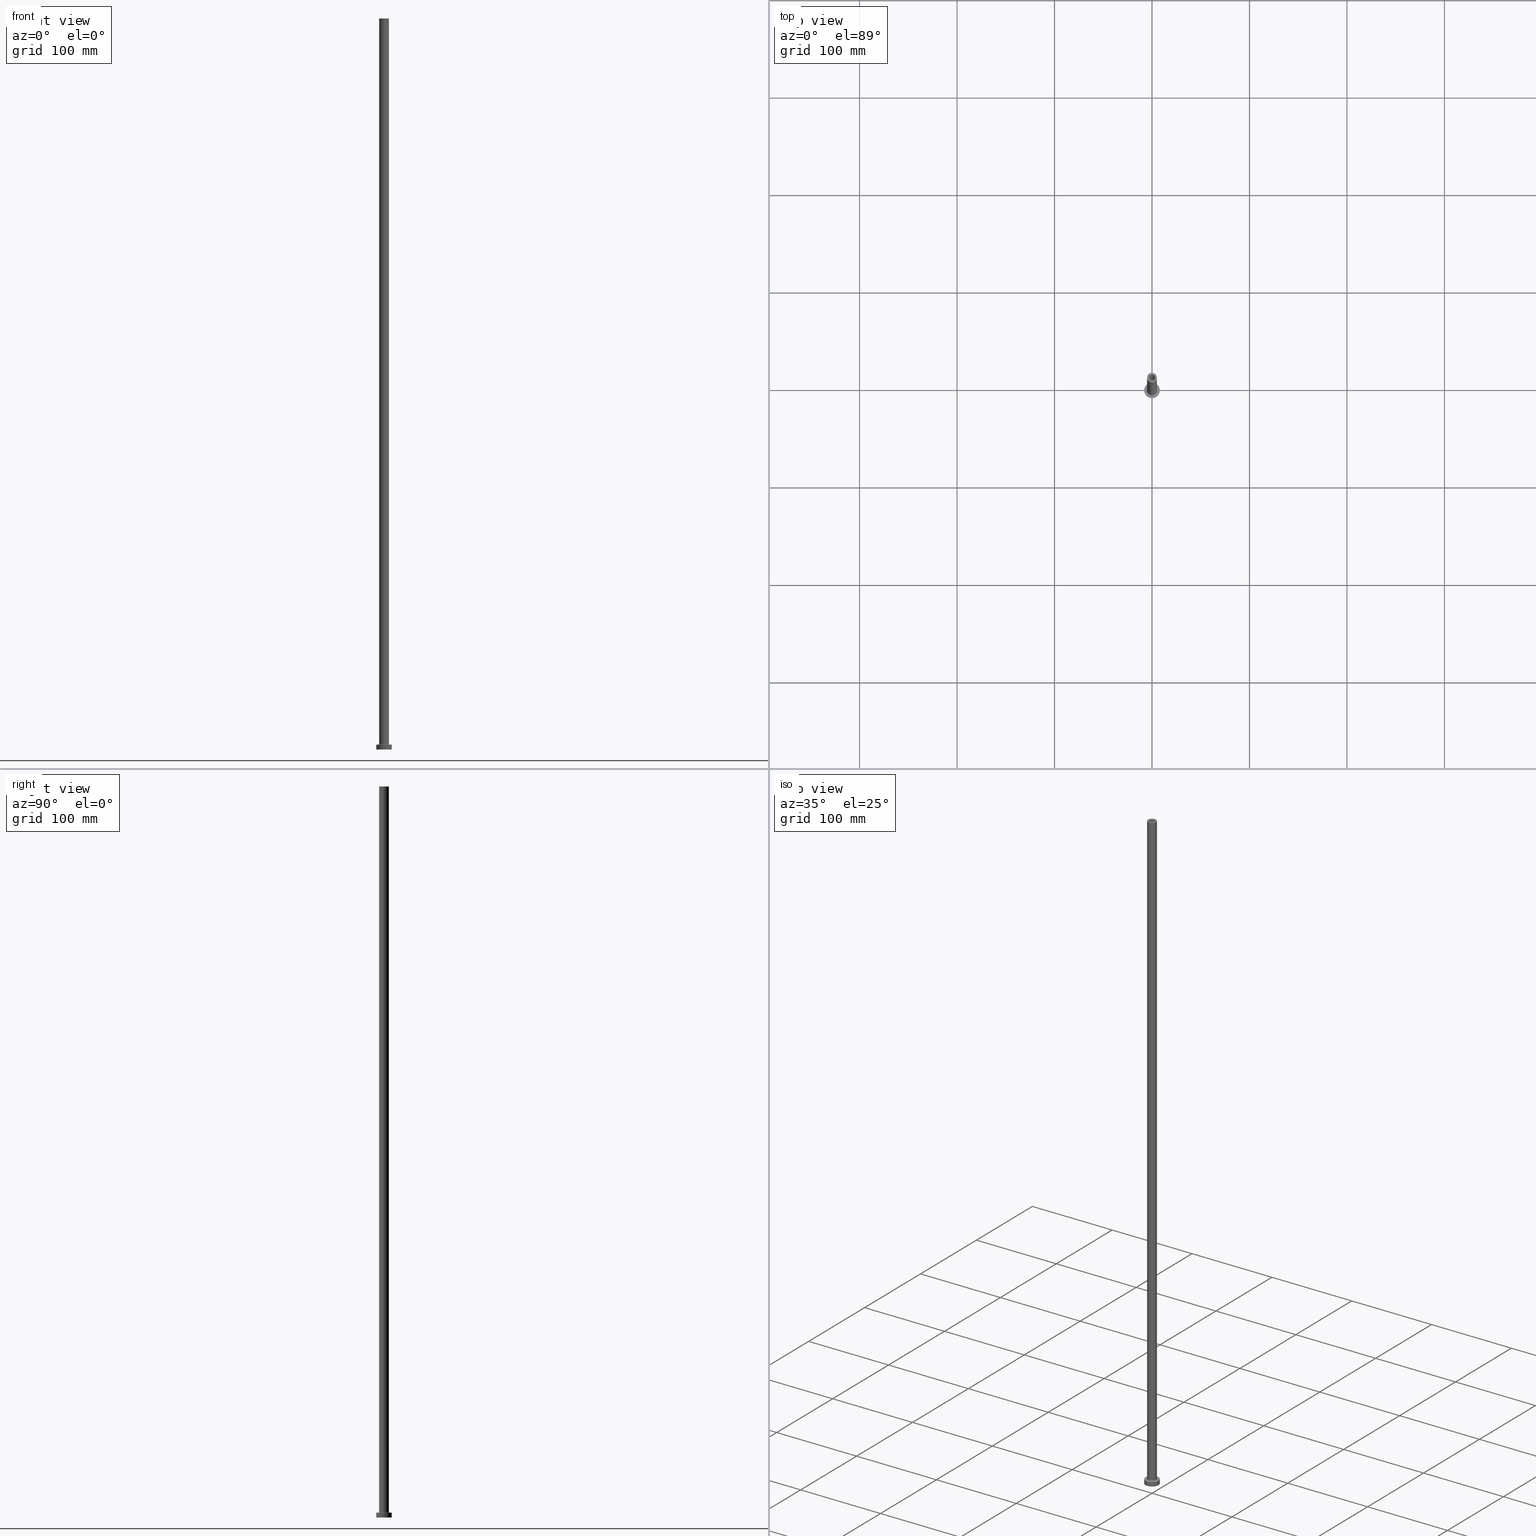
[diagram: canonical four-view strip — front | top / right | iso, engineering-drawing reading convention]
A machine part, canonical four-view strip (front | top / right | iso — engineering-drawing reading convention). The complete STEP part file that produces these views, byte-faithful:
ISO-10303-21;
HEADER;
FILE_DESCRIPTION (( 'STEP AP203' ),
    '1' );
FILE_NAME ('aff2.STEP',
    '2023-02-13T14:29:01',
    ( '' ),
    ( '' ),
    'SwSTEP 2.0',
    'SolidWorks 2019',
    '' );
FILE_SCHEMA (( 'CONFIG_CONTROL_DESIGN' ));
ENDSEC;

DATA;
#1 = EDGE_LOOP ( 'NONE', ( #181, #350, #306, #114 ) ) ;
#2 = VERTEX_POINT ( 'NONE', #364 ) ;
#3 = VERTEX_POINT ( 'NONE', #327 ) ;
#4 = EDGE_CURVE ( 'NONE', #135, #252, #195, .T. ) ;
#5 = DIRECTION ( 'NONE',  ( 0.000000000000000000, 0.000000000000000000, 1.000000000000000000 ) ) ;
#6 = ORIENTED_EDGE ( 'NONE', *, *, #314, .F. ) ;
#7 = PERSON_AND_ORGANIZATION_ROLE ( 'design_supplier' ) ;
#8 = ORIENTED_EDGE ( 'NONE', *, *, #450, .F. ) ;
#9 = MANIFOLD_SOLID_BREP ( 'Odebrat vysunut�m4', #116 ) ;
#10 = DIRECTION ( 'NONE',  ( -0.000000000000000000, -0.000000000000000000, -1.000000000000000000 ) ) ;
#11 = EDGE_LOOP ( 'NONE', ( #399, #104, #349, #459 ) ) ;
#12 = LINE ( 'NONE', #149, #432 ) ;
#13 = EDGE_CURVE ( 'NONE', #37, #252, #260, .T. ) ;
#14 = DIRECTION ( 'NONE',  ( 0.000000000000000000, 0.000000000000000000, 1.000000000000000000 ) ) ;
#15 = AXIS2_PLACEMENT_3D ( 'NONE', #368, #119, #48 ) ;
#16 = PLANE ( 'NONE',  #337 ) ;
#17 = ADVANCED_FACE ( 'NONE', ( #45 ), #115, .T. ) ;
#18 = CARTESIAN_POINT ( 'NONE',  ( 0.000000000000000000, 0.000000000000000000, 705.0000000000000000 ) ) ;
#19 = DIRECTION ( 'NONE',  ( 0.000000000000000000, 0.000000000000000000, -1.000000000000000000 ) ) ;
#20 = DIRECTION ( 'NONE',  ( 1.000000000000000000, 0.000000000000000000, -0.000000000000000000 ) ) ;
#21 = DIRECTION ( 'NONE',  ( 1.000000000000000000, 0.000000000000000000, 0.000000000000000000 ) ) ;
#22 = AXIS2_PLACEMENT_3D ( 'NONE', #387, #134, #458 ) ;
#23 = AXIS2_PLACEMENT_3D ( 'NONE', #290, #436, #121 ) ;
#24 = DIRECTION ( 'NONE',  ( 1.000000000000000000, 0.000000000000000000, -0.000000000000000000 ) ) ;
#25 = SECURITY_CLASSIFICATION ( '', '', #106 ) ;
#26 = CARTESIAN_POINT ( 'NONE',  ( 0.000000000000000000, 0.000000000000000000, 714.1923881554251921 ) ) ;
#27 = EDGE_LOOP ( 'NONE', ( #435, #281, #99, #140 ) ) ;
#28 = CC_DESIGN_PERSON_AND_ORGANIZATION_ASSIGNMENT ( #390, #385, ( #267 ) ) ;
#29 = AXIS2_PLACEMENT_3D ( 'NONE', #87, #54, #325 ) ;
#30 = APPLICATION_PROTOCOL_DEFINITION ( 'international standard', 'config_control_design', 1994, #365 ) ;
#31 = ORIENTED_EDGE ( 'NONE', *, *, #439, .F. ) ;
#32 = EDGE_CURVE ( 'NONE', #429, #72, #228, .T. ) ;
#33 = MECHANICAL_CONTEXT ( 'NONE', #341, 'mechanical' ) ;
#34 = CARTESIAN_POINT ( 'NONE',  ( 8.000000000000000000, 9.797174393178825657E-16, 5.000000000000000000 ) ) ;
#35 = DIRECTION ( 'NONE',  ( 0.000000000000000000, 0.000000000000000000, 1.000000000000000000 ) ) ;
#36 = DATE_AND_TIME ( #353, #301 ) ;
#37 = VERTEX_POINT ( 'NONE', #220 ) ;
#38 = APPROVAL_STATUS ( 'not_yet_approved' ) ;
#39 = EDGE_CURVE ( 'NONE', #44, #135, #42, .T. ) ;
#40 = ORIENTED_EDGE ( 'NONE', *, *, #79, .F. ) ;
#41 = CALENDAR_DATE ( 2023, 13, 2 ) ;
#42 = LINE ( 'NONE', #183, #361 ) ;
#43 = CARTESIAN_POINT ( 'NONE',  ( -5.000000000000000000, 0.000000000000000000, 5.499999999999949374 ) ) ;
#44 = VERTEX_POINT ( 'NONE', #186 ) ;
#45 = FACE_OUTER_BOUND ( 'NONE', #357, .T. ) ;
#46 = EDGE_CURVE ( 'NONE', #283, #58, #12, .T. ) ;
#47 = LOCAL_TIME ( 15, 29, 1.000000000000000000, #175 ) ;
#48 = DIRECTION ( 'NONE',  ( 1.000000000000000000, 0.000000000000000000, 0.000000000000000000 ) ) ;
#49 = DIRECTION ( 'NONE',  ( 0.000000000000000000, 0.000000000000000000, 1.000000000000000000 ) ) ;
#50 = EDGE_CURVE ( 'NONE', #429, #148, #286, .T. ) ;
#51 = DIRECTION ( 'NONE',  ( 0.000000000000000000, 0.000000000000000000, 1.000000000000000000 ) ) ;
#52 = CARTESIAN_POINT ( 'NONE',  ( 3.250000000000000444, 3.980102097228898231E-16, 714.1923881554251921 ) ) ;
#53 = CARTESIAN_POINT ( 'NONE',  ( 0.000000000000000000, 0.000000000000000000, 705.0000000000000000 ) ) ;
#54 = DIRECTION ( 'NONE',  ( 0.000000000000000000, 0.000000000000000000, 1.000000000000000000 ) ) ;
#55 = FACE_OUTER_BOUND ( 'NONE', #209, .T. ) ;
#56 = DIRECTION ( 'NONE',  ( 0.000000000000000000, 0.000000000000000000, 1.000000000000000000 ) ) ;
#57 = AXIS2_PLACEMENT_3D ( 'NONE', #378, #56, #340 ) ;
#58 = VERTEX_POINT ( 'NONE', #193 ) ;
#59 = DIRECTION ( 'NONE',  ( 0.000000000000000000, 0.000000000000000000, -1.000000000000000000 ) ) ;
#60 = CC_DESIGN_APPROVAL ( #382, ( #366 ) ) ;
#61 = PERSON_AND_ORGANIZATION ( #109, #232 ) ;
#62 = CC_DESIGN_PERSON_AND_ORGANIZATION_ASSIGNMENT ( #182, #7, ( #366 ) ) ;
#63 = PERSON_AND_ORGANIZATION ( #109, #232 ) ;
#64 = EDGE_CURVE ( 'NONE', #71, #319, #144, .T. ) ;
#65 = CIRCLE ( 'NONE', #345, 3.100000000000000089 ) ;
#66 = DIRECTION ( 'NONE',  ( 1.000000000000000000, 0.000000000000000000, 0.000000000000000000 ) ) ;
#67 = CARTESIAN_POINT ( 'NONE',  ( 5.000000000000000000, 6.123233995736766282E-16, 5.499999999999949374 ) ) ;
#68 = ORIENTED_EDGE ( 'NONE', *, *, #39, .F. ) ;
#69 = COORDINATED_UNIVERSAL_TIME_OFFSET ( 1, 0, .AHEAD. ) ;
#70 = ORIENTED_EDGE ( 'NONE', *, *, #126, .F. ) ;
#71 = VERTEX_POINT ( 'NONE', #404 ) ;
#72 = VERTEX_POINT ( 'NONE', #191 ) ;
#73 = ORIENTED_EDGE ( 'NONE', *, *, #284, .F. ) ;
#74 = AXIS2_PLACEMENT_3D ( 'NONE', #97, #275, #95 ) ;
#75 = CIRCLE ( 'NONE', #416, 3.100000000000000089 ) ;
#76 = DATE_AND_TIME ( #41, #243 ) ;
#77 = ORIENTED_EDGE ( 'NONE', *, *, #392, .F. ) ;
#78 = DIRECTION ( 'NONE',  ( -0.000000000000000000, -0.000000000000000000, -1.000000000000000000 ) ) ;
#79 = EDGE_CURVE ( 'NONE', #200, #165, #255, .T. ) ;
#80 = DESIGN_CONTEXT ( 'detailed design', #365, 'design' ) ;
#81 = AXIS2_PLACEMENT_3D ( 'NONE', #262, #412, #229 ) ;
#82 = CC_DESIGN_APPROVAL ( #242, ( #25 ) ) ;
#83 = FACE_BOUND ( 'NONE', #108, .T. ) ;
#84 = DIRECTION ( 'NONE',  ( -1.000000000000000000, 0.000000000000000000, 0.000000000000000000 ) ) ;
#85 = FACE_OUTER_BOUND ( 'NONE', #11, .T. ) ;
#86 = DIRECTION ( 'NONE',  ( -1.000000000000000000, 0.000000000000000000, 0.000000000000000000 ) ) ;
#87 = CARTESIAN_POINT ( 'NONE',  ( 0.000000000000000000, 0.000000000000000000, 5.499999999999949374 ) ) ;
#88 = DIRECTION ( 'NONE',  ( 1.000000000000000000, 0.000000000000000000, 0.000000000000000000 ) ) ;
#89 = EDGE_CURVE ( 'NONE', #251, #58, #75, .T. ) ;
#90 = DIRECTION ( 'NONE',  ( 0.000000000000000000, 0.000000000000000000, 1.000000000000000000 ) ) ;
#91 = DIRECTION ( 'NONE',  ( -1.000000000000000000, 0.000000000000000000, 0.000000000000000000 ) ) ;
#92 = CIRCLE ( 'NONE', #130, 3.100000000000000089 ) ;
#93 = DIRECTION ( 'NONE',  ( 1.000000000000000000, 0.000000000000000000, 0.000000000000000000 ) ) ;
#94 = EDGE_CURVE ( 'NONE', #3, #283, #117, .T. ) ;
#95 = DIRECTION ( 'NONE',  ( 1.000000000000000000, 0.000000000000000000, 0.000000000000000000 ) ) ;
#96 = DIRECTION ( 'NONE',  ( -1.000000000000000000, 0.000000000000000000, 0.000000000000000000 ) ) ;
#97 = CARTESIAN_POINT ( 'NONE',  ( 0.000000000000000000, 0.000000000000000000, 750.0000000000000000 ) ) ;
#98 = VECTOR ( 'NONE', #59, 1000.000000000000000 ) ;
#99 = ORIENTED_EDGE ( 'NONE', *, *, #113, .F. ) ;
#100 = DIRECTION ( 'NONE',  ( 1.000000000000000000, 0.000000000000000000, 0.000000000000000000 ) ) ;
#101 = FACE_OUTER_BOUND ( 'NONE', #320, .T. ) ;
#102 = ORIENTED_EDGE ( 'NONE', *, *, #444, .F. ) ;
#103 = CARTESIAN_POINT ( 'NONE',  ( 3.250000000000000444, 3.980102097228898231E-16, 705.0000000000000000 ) ) ;
#104 = ORIENTED_EDGE ( 'NONE', *, *, #39, .T. ) ;
#105 = ADVANCED_FACE ( 'NONE', ( #154 ), #381, .F. ) ;
#106 = SECURITY_CLASSIFICATION_LEVEL ( 'unclassified' ) ;
#107 = AXIS2_PLACEMENT_3D ( 'NONE', #120, #235, #339 ) ;
#108 = EDGE_LOOP ( 'NONE', ( #393, #142 ) ) ;
#109 = PERSON ( 'NEUR�EN�', 'NEUR�EN�', 'NEUR�EN�', ('NEUR�EN�'), ('NEUR�EN�'), ('NEUR�EN�') ) ;
#110 = CIRCLE ( 'NONE', #380, 8.000000000000000000 ) ;
#111 = ORIENTED_EDGE ( 'NONE', *, *, #418, .T. ) ;
#112 = SHAPE_DEFINITION_REPRESENTATION ( #155, #405 ) ;
#113 = EDGE_CURVE ( 'NONE', #433, #397, #293, .T. ) ;
#114 = ORIENTED_EDGE ( 'NONE', *, *, #332, .F. ) ;
#115 = CYLINDRICAL_SURFACE ( 'NONE', #302, 8.000000000000000000 ) ;
#116 = CLOSED_SHELL ( 'NONE', ( #207, #376, #105, #274, #384, #17, #411, #138, #403, #199, #430, #169, #292, #324 ) ) ;
#117 = CIRCLE ( 'NONE', #396, 3.100000000000000089 ) ;
#118 = DIRECTION ( 'NONE',  ( -0.000000000000000000, -0.000000000000000000, -1.000000000000000000 ) ) ;
#119 = DIRECTION ( 'NONE',  ( 0.000000000000000000, 0.000000000000000000, 1.000000000000000000 ) ) ;
#120 = CARTESIAN_POINT ( 'NONE',  ( 0.000000000000000000, 0.000000000000000000, 750.0000000000000000 ) ) ;
#121 = DIRECTION ( 'NONE',  ( 1.000000000000000000, 0.000000000000000000, 0.000000000000000000 ) ) ;
#122 = CARTESIAN_POINT ( 'NONE',  ( 0.000000000000000000, 0.000000000000000000, 705.0000000000000000 ) ) ;
#123 = AXIS2_PLACEMENT_3D ( 'NONE', #335, #297, #91 ) ;
#124 = FACE_OUTER_BOUND ( 'NONE', #1, .T. ) ;
#125 = DIRECTION ( 'NONE',  ( -1.000000000000000000, 1.224646799147351482E-16, 0.000000000000000000 ) ) ;
#126 = EDGE_CURVE ( 'NONE', #283, #3, #92, .T. ) ;
#127 = ORIENTED_EDGE ( 'NONE', *, *, #351, .F. ) ;
#128 = DIRECTION ( 'NONE',  ( -1.000000000000000000, 0.000000000000000000, 0.000000000000000000 ) ) ;
#129 = LINE ( 'NONE', #295, #98 ) ;
#130 = AXIS2_PLACEMENT_3D ( 'NONE', #203, #347, #454 ) ;
#131 = ORIENTED_EDGE ( 'NONE', *, *, #46, .F. ) ;
#132 = CARTESIAN_POINT ( 'NONE',  ( 0.000000000000000000, 0.000000000000000000, 0.000000000000000000 ) ) ;
#133 = FACE_OUTER_BOUND ( 'NONE', #176, .T. ) ;
#134 = DIRECTION ( 'NONE',  ( 0.000000000000000000, 0.000000000000000000, 1.000000000000000000 ) ) ;
#135 = VERTEX_POINT ( 'NONE', #67 ) ;
#136 = CIRCLE ( 'NONE', #300, 8.000000000000000000 ) ;
#137 = EDGE_LOOP ( 'NONE', ( #102, #6 ) ) ;
#138 = ADVANCED_FACE ( 'NONE', ( #388, #304 ), #272, .F. ) ;
#139 = ORIENTED_EDGE ( 'NONE', *, *, #423, .T. ) ;
#140 = ORIENTED_EDGE ( 'NONE', *, *, #145, .F. ) ;
#141 = CALENDAR_DATE ( 2023, 13, 2 ) ;
#142 = ORIENTED_EDGE ( 'NONE', *, *, #439, .T. ) ;
#143 = ORIENTED_EDGE ( 'NONE', *, *, #4, .F. ) ;
#144 = CIRCLE ( 'NONE', #461, 3.250000000000000444 ) ;
#145 = EDGE_CURVE ( 'NONE', #135, #433, #438, .T. ) ;
#146 = DATE_AND_TIME ( #428, #47 ) ;
#147 = DIRECTION ( 'NONE',  ( 0.000000000000000000, 0.000000000000000000, -1.000000000000000000 ) ) ;
#148 = VERTEX_POINT ( 'NONE', #265 ) ;
#149 = CARTESIAN_POINT ( 'NONE',  ( -3.100000000000000089, 0.000000000000000000, 750.0000000000000000 ) ) ;
#150 = LOCAL_TIME ( 15, 29, 1.000000000000000000, #69 ) ;
#151 = CIRCLE ( 'NONE', #184, 3.250000000000000444 ) ;
#152 = AXIS2_PLACEMENT_3D ( 'NONE', #225, #51, #333 ) ;
#153 = AXIS2_PLACEMENT_3D ( 'NONE', #413, #90, #389 ) ;
#154 = FACE_OUTER_BOUND ( 'NONE', #27, .T. ) ;
#155 = PRODUCT_DEFINITION_SHAPE ( 'NONE', 'NONE',  #267 ) ;
#156 = DIRECTION ( 'NONE',  ( 1.000000000000000000, 0.000000000000000000, 0.000000000000000000 ) ) ;
#157 = CARTESIAN_POINT ( 'NONE',  ( 0.000000000000000000, 0.000000000000000000, 750.0000000000000000 ) ) ;
#158 = DIRECTION ( 'NONE',  ( 0.000000000000000000, 0.000000000000000000, 1.000000000000000000 ) ) ;
#159 = DIRECTION ( 'NONE',  ( -0.000000000000000000, -0.000000000000000000, -1.000000000000000000 ) ) ;
#160 = CIRCLE ( 'NONE', #421, 3.250000000000000444 ) ;
#161 = FACE_OUTER_BOUND ( 'NONE', #451, .T. ) ;
#162 = DIRECTION ( 'NONE',  ( 1.000000000000000000, 0.000000000000000000, 0.000000000000000000 ) ) ;
#163 = CYLINDRICAL_SURFACE ( 'NONE', #123, 8.000000000000000000 ) ;
#164 = APPROVAL_ROLE ( '' ) ;
#165 = VERTEX_POINT ( 'NONE', #414 ) ;
#166 = APPROVAL_STATUS ( 'not_yet_approved' ) ;
#167 = PLANE ( 'NONE',  #268 ) ;
#168 = APPROVAL_DATE_TIME ( #36, #187 ) ;
#169 = ADVANCED_FACE ( 'NONE', ( #233 ), #330, .F. ) ;
#170 = DATE_TIME_ROLE ( 'creation_date' ) ;
#171 = VECTOR ( 'NONE', #373, 1000.000000000000000 ) ;
#172 = CIRCLE ( 'NONE', #74, 5.000000000000000000 ) ;
#173 = AXIS2_PLACEMENT_3D ( 'NONE', #294, #329, #156 ) ;
#174 = ORIENTED_EDGE ( 'NONE', *, *, #338, .T. ) ;
#175 = COORDINATED_UNIVERSAL_TIME_OFFSET ( 1, 0, .AHEAD. ) ;
#176 = EDGE_LOOP ( 'NONE', ( #185, #139 ) ) ;
#177 = ORIENTED_EDGE ( 'NONE', *, *, #216, .F. ) ;
#178 = COORDINATED_UNIVERSAL_TIME_OFFSET ( 1, 0, .AHEAD. ) ;
#179 = EDGE_LOOP ( 'NONE', ( #321, #289, #214, #278 ) ) ;
#180 = EDGE_CURVE ( 'NONE', #148, #2, #273, .T. ) ;
#181 = ORIENTED_EDGE ( 'NONE', *, *, #284, .T. ) ;
#182 = PERSON_AND_ORGANIZATION ( #109, #232 ) ;
#183 = CARTESIAN_POINT ( 'NONE',  ( 5.000000000000000000, 6.123233995736766282E-16, 750.0000000000000000 ) ) ;
#184 = AXIS2_PLACEMENT_3D ( 'NONE', #375, #159, #21 ) ;
#185 = ORIENTED_EDGE ( 'NONE', *, *, #450, .T. ) ;
#186 = CARTESIAN_POINT ( 'NONE',  ( 5.000000000000000000, 6.123233995736766282E-16, 750.0000000000000000 ) ) ;
#187 = APPROVAL ( #166, 'NEUR�EN�' ) ;
#188 = APPROVAL_PERSON_ORGANIZATION ( #240, #187, #236 ) ;
#189 = AXIS2_PLACEMENT_3D ( 'NONE', #316, #201, #128 ) ;
#190 = FACE_OUTER_BOUND ( 'NONE', #427, .T. ) ;
#191 = CARTESIAN_POINT ( 'NONE',  ( -8.000000000000000000, 0.000000000000000000, 0.000000000000000000 ) ) ;
#192 = DIRECTION ( 'NONE',  ( 0.000000000000000000, 0.000000000000000000, -1.000000000000000000 ) ) ;
#193 = CARTESIAN_POINT ( 'NONE',  ( -3.100000000000000089, 0.000000000000000000, 705.0000000000000000 ) ) ;
#194 = LINE ( 'NONE', #443, #171 ) ;
#195 = CIRCLE ( 'NONE', #29, 5.000000000000000000 ) ;
#196 = CIRCLE ( 'NONE', #153, 8.000000000000000000 ) ;
#197 = DIRECTION ( 'NONE',  ( 0.000000000000000000, 0.000000000000000000, 1.000000000000000000 ) ) ;
#198 = CARTESIAN_POINT ( 'NONE',  ( 0.000000000000000000, 0.000000000000000000, 705.0000000000000000 ) ) ;
#199 = ADVANCED_FACE ( 'NONE', ( #305, #133 ), #167, .T. ) ;
#200 = VERTEX_POINT ( 'NONE', #103 ) ;
#201 = DIRECTION ( 'NONE',  ( 0.000000000000000000, 0.000000000000000000, -1.000000000000000000 ) ) ;
#202 = PERSON_AND_ORGANIZATION_ROLE ( 'design_owner' ) ;
#203 = CARTESIAN_POINT ( 'NONE',  ( 0.000000000000000000, 0.000000000000000000, 750.0000000000000000 ) ) ;
#204 = ORIENTED_EDGE ( 'NONE', *, *, #94, .T. ) ;
#205 =( NAMED_UNIT ( * ) SI_UNIT ( $, .STERADIAN. ) SOLID_ANGLE_UNIT ( ) );
#206 = ORIENTED_EDGE ( 'NONE', *, *, #94, .F. ) ;
#207 = ADVANCED_FACE ( 'NONE', ( #247 ), #213, .F. ) ;
#208 = DATE_AND_TIME ( #269, #150 ) ;
#209 = EDGE_LOOP ( 'NONE', ( #391, #360 ) ) ;
#210 = ORIENTED_EDGE ( 'NONE', *, *, #180, .F. ) ;
#211 = CARTESIAN_POINT ( 'NONE',  ( 0.000000000000000000, 0.000000000000000000, 0.000000000000000000 ) ) ;
#212 = AXIS2_PLACEMENT_3D ( 'NONE', #369, #49, #24 ) ;
#213 = CYLINDRICAL_SURFACE ( 'NONE', #189, 3.100000000000000089 ) ;
#214 = ORIENTED_EDGE ( 'NONE', *, *, #332, .T. ) ;
#215 = PERSON_AND_ORGANIZATION ( #109, #232 ) ;
#216 = EDGE_CURVE ( 'NONE', #148, #429, #196, .T. ) ;
#217 = EDGE_LOOP ( 'NONE', ( #177, #317, #287, #400 ) ) ;
#218 = EDGE_LOOP ( 'NONE', ( #237, #204, #312, #307 ) ) ;
#219 = ORIENTED_EDGE ( 'NONE', *, *, #351, .T. ) ;
#220 = CARTESIAN_POINT ( 'NONE',  ( -5.000000000000000000, 0.000000000000000000, 750.0000000000000000 ) ) ;
#221 = CC_DESIGN_APPROVAL ( #187, ( #267 ) ) ;
#222 = AXIS2_PLACEMENT_3D ( 'NONE', #334, #19, #96 ) ;
#223 = CARTESIAN_POINT ( 'NONE',  ( 0.000000000000000000, 0.000000000000000000, 750.0000000000000000 ) ) ;
#224 = APPROVAL_PERSON_ORGANIZATION ( #61, #382, #164 ) ;
#225 = CARTESIAN_POINT ( 'NONE',  ( 0.000000000000000000, 0.000000000000000000, 705.0000000000000000 ) ) ;
#226 = PLANE ( 'NONE',  #212 ) ;
#227 = CIRCLE ( 'NONE', #409, 5.000000000000000000 ) ;
#228 = LINE ( 'NONE', #401, #371 ) ;
#229 = DIRECTION ( 'NONE',  ( -1.000000000000000000, 0.000000000000000000, 0.000000000000000000 ) ) ;
#230 = CYLINDRICAL_SURFACE ( 'NONE', #379, 3.250000000000000444 ) ;
#231 = FACE_OUTER_BOUND ( 'NONE', #217, .T. ) ;
#232 = ORGANIZATION ( 'NEUR�EN�', 'NEUR�EN�', '' ) ;
#233 = FACE_OUTER_BOUND ( 'NONE', #179, .T. ) ;
#234 = VECTOR ( 'NONE', #238, 1000.000000000000000 ) ;
#235 = DIRECTION ( 'NONE',  ( -0.000000000000000000, -0.000000000000000000, -1.000000000000000000 ) ) ;
#236 = APPROVAL_ROLE ( '' ) ;
#237 = ORIENTED_EDGE ( 'NONE', *, *, #338, .F. ) ;
#238 = DIRECTION ( 'NONE',  ( -0.000000000000000000, -0.000000000000000000, -1.000000000000000000 ) ) ;
#239 = ORIENTED_EDGE ( 'NONE', *, *, #259, .F. ) ;
#240 = PERSON_AND_ORGANIZATION ( #109, #232 ) ;
#241 = ORIENTED_EDGE ( 'NONE', *, *, #89, .T. ) ;
#242 = APPROVAL ( #38, 'NEUR�EN�' ) ;
#243 = LOCAL_TIME ( 15, 29, 1.000000000000000000, #288 ) ;
#244 = DIRECTION ( 'NONE',  ( -0.000000000000000000, -0.000000000000000000, -1.000000000000000000 ) ) ;
#245 = DATE_TIME_ROLE ( 'classification_date' ) ;
#246 = AXIS2_PLACEMENT_3D ( 'NONE', #291, #331, #125 ) ;
#247 = FACE_OUTER_BOUND ( 'NONE', #457, .T. ) ;
#248 = ORIENTED_EDGE ( 'NONE', *, *, #444, .T. ) ;
#249 = CC_DESIGN_PERSON_AND_ORGANIZATION_ASSIGNMENT ( #63, #202, ( #323 ) ) ;
#250 = PERSON_AND_ORGANIZATION_ROLE ( 'classification_officer' ) ;
#251 = VERTEX_POINT ( 'NONE', #455 ) ;
#252 = VERTEX_POINT ( 'NONE', #43 ) ;
#253 = CARTESIAN_POINT ( 'NONE',  ( 0.000000000000000000, 0.000000000000000000, 5.000000000000000000 ) ) ;
#254 = AXIS2_PLACEMENT_3D ( 'NONE', #157, #383, #377 ) ;
#255 = CIRCLE ( 'NONE', #152, 3.250000000000000444 ) ;
#256 = CC_DESIGN_DATE_AND_TIME_ASSIGNMENT ( #76, #245, ( #25 ) ) ;
#257 = DIRECTION ( 'NONE',  ( 1.000000000000000000, 0.000000000000000000, 0.000000000000000000 ) ) ;
#258 = CARTESIAN_POINT ( 'NONE',  ( -3.250000000000000444, 0.000000000000000000, 0.000000000000000000 ) ) ;
#259 = EDGE_CURVE ( 'NONE', #252, #397, #452, .T. ) ;
#260 = LINE ( 'NONE', #362, #352 ) ;
#261 = FACE_OUTER_BOUND ( 'NONE', #218, .T. ) ;
#262 = CARTESIAN_POINT ( 'NONE',  ( 0.000000000000000000, 0.000000000000000000, 750.0000000000000000 ) ) ;
#263 = CC_DESIGN_DATE_AND_TIME_ASSIGNMENT ( #208, #170, ( #267 ) ) ;
#264 = CYLINDRICAL_SURFACE ( 'NONE', #81, 5.000000000000000000 ) ;
#265 = CARTESIAN_POINT ( 'NONE',  ( 8.000000000000000000, 9.797174393178825657E-16, 5.000000000000000000 ) ) ;
#266 = DIRECTION ( 'NONE',  ( 0.000000000000000000, 0.000000000000000000, 1.000000000000000000 ) ) ;
#267 = PRODUCT_DEFINITION ( 'NEZN�M�', '', #366, #80 ) ;
#268 = AXIS2_PLACEMENT_3D ( 'NONE', #456, #5, #426 ) ;
#269 = CALENDAR_DATE ( 2023, 13, 2 ) ;
#270 = ORIENTED_EDGE ( 'NONE', *, *, #64, .F. ) ;
#271 = CC_DESIGN_PERSON_AND_ORGANIZATION_ASSIGNMENT ( #215, #250, ( #25 ) ) ;
#272 = PLANE ( 'NONE',  #57 ) ;
#273 = LINE ( 'NONE', #34, #234 ) ;
#274 = ADVANCED_FACE ( 'NONE', ( #85 ), #264, .T. ) ;
#275 = DIRECTION ( 'NONE',  ( 0.000000000000000000, 0.000000000000000000, 1.000000000000000000 ) ) ;
#276 = CIRCLE ( 'NONE', #310, 5.500000000000000000 ) ;
#277 = DIRECTION ( 'NONE',  ( 1.000000000000000000, 0.000000000000000000, 0.000000000000000000 ) ) ;
#278 = ORIENTED_EDGE ( 'NONE', *, *, #392, .T. ) ;
#279 =( NAMED_UNIT ( * ) PLANE_ANGLE_UNIT ( ) SI_UNIT ( $, .RADIAN. ) );
#280 = ORIENTED_EDGE ( 'NONE', *, *, #145, .T. ) ;
#281 = ORIENTED_EDGE ( 'NONE', *, *, #259, .T. ) ;
#282 = PERSON_AND_ORGANIZATION_ROLE ( 'creator' ) ;
#283 = VERTEX_POINT ( 'NONE', #298 ) ;
#284 = EDGE_CURVE ( 'NONE', #165, #200, #160, .T. ) ;
#285 = EDGE_LOOP ( 'NONE', ( #219, #241 ) ) ;
#286 = CIRCLE ( 'NONE', #23, 8.000000000000000000 ) ;
#287 = ORIENTED_EDGE ( 'NONE', *, *, #314, .T. ) ;
#288 = COORDINATED_UNIVERSAL_TIME_OFFSET ( 1, 0, .AHEAD. ) ;
#289 = ORIENTED_EDGE ( 'NONE', *, *, #79, .T. ) ;
#290 = CARTESIAN_POINT ( 'NONE',  ( 0.000000000000000000, 0.000000000000000000, 5.000000000000000000 ) ) ;
#291 = CARTESIAN_POINT ( 'NONE',  ( -5.500000000000000000, 6.735557395310442023E-16, 5.499999999999949374 ) ) ;
#292 = ADVANCED_FACE ( 'NONE', ( #410, #190 ), #16, .F. ) ;
#293 = CIRCLE ( 'NONE', #173, 5.500000000000000000 ) ;
#294 = CARTESIAN_POINT ( 'NONE',  ( 0.000000000000000000, 0.000000000000000000, 5.000000000000000000 ) ) ;
#295 = CARTESIAN_POINT ( 'NONE',  ( -3.250000000000000444, 0.000000000000000000, 714.1923881554251921 ) ) ;
#296 = DIRECTION ( 'NONE',  ( 1.000000000000000000, 0.000000000000000000, 0.000000000000000000 ) ) ;
#297 = DIRECTION ( 'NONE',  ( -0.000000000000000000, -0.000000000000000000, -1.000000000000000000 ) ) ;
#298 = CARTESIAN_POINT ( 'NONE',  ( -3.100000000000000089, 0.000000000000000000, 750.0000000000000000 ) ) ;
#299 = CARTESIAN_POINT ( 'NONE',  ( 0.000000000000000000, 0.000000000000000000, 5.499999999999949374 ) ) ;
#300 = AXIS2_PLACEMENT_3D ( 'NONE', #448, #197, #162 ) ;
#301 = LOCAL_TIME ( 15, 29, 1.000000000000000000, #420 ) ;
#302 = AXIS2_PLACEMENT_3D ( 'NONE', #253, #442, #84 ) ;
#303 = AXIS2_PLACEMENT_3D ( 'NONE', #372, #374, #447 ) ;
#304 = FACE_OUTER_BOUND ( 'NONE', #137, .T. ) ;
#305 = FACE_BOUND ( 'NONE', #315, .T. ) ;
#306 = ORIENTED_EDGE ( 'NONE', *, *, #64, .T. ) ;
#307 = ORIENTED_EDGE ( 'NONE', *, *, #89, .F. ) ;
#308 =( LENGTH_UNIT ( ) NAMED_UNIT ( * ) SI_UNIT ( .MILLI., .METRE. ) );
#309 = VECTOR ( 'NONE', #342, 1000.000000000000000 ) ;
#310 = AXIS2_PLACEMENT_3D ( 'NONE', #419, #244, #66 ) ;
#311 = DIRECTION ( 'NONE',  ( 1.000000000000000000, 0.000000000000000000, 0.000000000000000000 ) ) ;
#312 = ORIENTED_EDGE ( 'NONE', *, *, #46, .T. ) ;
#313 = APPROVAL_ROLE ( '' ) ;
#314 = EDGE_CURVE ( 'NONE', #2, #72, #136, .T. ) ;
#315 = EDGE_LOOP ( 'NONE', ( #70, #206 ) ) ;
#316 = CARTESIAN_POINT ( 'NONE',  ( 0.000000000000000000, 0.000000000000000000, 750.0000000000000000 ) ) ;
#317 = ORIENTED_EDGE ( 'NONE', *, *, #180, .T. ) ;
#318 = DATE_AND_TIME ( #141, #326 ) ;
#319 = VERTEX_POINT ( 'NONE', #258 ) ;
#320 = EDGE_LOOP ( 'NONE', ( #239, #143, #280, #31 ) ) ;
#321 = ORIENTED_EDGE ( 'NONE', *, *, #359, .F. ) ;
#322 = DIRECTION ( 'NONE',  ( -0.000000000000000000, -0.000000000000000000, -1.000000000000000000 ) ) ;
#323 = PRODUCT ( 'aff2', 'aff2', '', ( #33 ) ) ;
#324 = ADVANCED_FACE ( 'NONE', ( #261 ), #446, .F. ) ;
#325 = DIRECTION ( 'NONE',  ( 1.000000000000000000, 0.000000000000000000, 0.000000000000000000 ) ) ;
#326 = LOCAL_TIME ( 15, 29, 1.000000000000000000, #178 ) ;
#327 = CARTESIAN_POINT ( 'NONE',  ( 3.100000000000000089, 3.796405077356794918E-16, 750.0000000000000000 ) ) ;
#328 = AXIS2_PLACEMENT_3D ( 'NONE', #211, #35, #311 ) ;
#329 = DIRECTION ( 'NONE',  ( -0.000000000000000000, -0.000000000000000000, -1.000000000000000000 ) ) ;
#330 = CYLINDRICAL_SURFACE ( 'NONE', #222, 3.250000000000000444 ) ;
#331 = DIRECTION ( 'NONE',  ( 1.224646799147353207E-16, 1.000000000000000000, -0.000000000000000000 ) ) ;
#332 = EDGE_CURVE ( 'NONE', #165, #319, #129, .T. ) ;
#333 = DIRECTION ( 'NONE',  ( 1.000000000000000000, 0.000000000000000000, 0.000000000000000000 ) ) ;
#334 = CARTESIAN_POINT ( 'NONE',  ( 0.000000000000000000, 0.000000000000000000, 714.1923881554251921 ) ) ;
#335 = CARTESIAN_POINT ( 'NONE',  ( 0.000000000000000000, 0.000000000000000000, 5.000000000000000000 ) ) ;
#336 = DIRECTION ( 'NONE',  ( 0.000000000000000000, 0.000000000000000000, 1.000000000000000000 ) ) ;
#337 = AXIS2_PLACEMENT_3D ( 'NONE', #198, #336, #20 ) ;
#338 = EDGE_CURVE ( 'NONE', #3, #251, #194, .T. ) ;
#339 = DIRECTION ( 'NONE',  ( -1.000000000000000000, 0.000000000000000000, 0.000000000000000000 ) ) ;
#340 = DIRECTION ( 'NONE',  ( 1.000000000000000000, 0.000000000000000000, -0.000000000000000000 ) ) ;
#341 = APPLICATION_CONTEXT ( 'configuration controlled 3d designs of mechanical parts and assemblies' ) ;
#342 = DIRECTION ( 'NONE',  ( 0.000000000000000000, 0.000000000000000000, -1.000000000000000000 ) ) ;
#343 = CC_DESIGN_SECURITY_CLASSIFICATION ( #25, ( #366 ) ) ;
#344 = APPROVAL_STATUS ( 'not_yet_approved' ) ;
#345 = AXIS2_PLACEMENT_3D ( 'NONE', #122, #406, #408 ) ;
#346 = DIRECTION ( 'NONE',  ( 0.000000000000000000, 0.000000000000000000, 1.000000000000000000 ) ) ;
#347 = DIRECTION ( 'NONE',  ( 0.000000000000000000, 0.000000000000000000, 1.000000000000000000 ) ) ;
#348 = PRODUCT_RELATED_PRODUCT_CATEGORY ( 'detail', '', ( #323 ) ) ;
#349 = ORIENTED_EDGE ( 'NONE', *, *, #4, .T. ) ;
#350 = ORIENTED_EDGE ( 'NONE', *, *, #359, .T. ) ;
#351 = EDGE_CURVE ( 'NONE', #58, #251, #65, .T. ) ;
#352 = VECTOR ( 'NONE', #10, 1000.000000000000000 ) ;
#353 = CALENDAR_DATE ( 2023, 13, 2 ) ;
#354 = ORIENTED_EDGE ( 'NONE', *, *, #13, .T. ) ;
#355 = PERSON_AND_ORGANIZATION ( #109, #232 ) ;
#356 = ORIENTED_EDGE ( 'NONE', *, *, #126, .T. ) ;
#357 = EDGE_LOOP ( 'NONE', ( #210, #398, #394, #248 ) ) ;
#358 = APPROVAL_DATE_TIME ( #146, #382 ) ;
#359 = EDGE_CURVE ( 'NONE', #200, #71, #415, .T. ) ;
#360 = ORIENTED_EDGE ( 'NONE', *, *, #216, .T. ) ;
#361 = VECTOR ( 'NONE', #322, 1000.000000000000000 ) ;
#362 = CARTESIAN_POINT ( 'NONE',  ( -5.000000000000000000, 0.000000000000000000, 750.0000000000000000 ) ) ;
#363 = UNCERTAINTY_MEASURE_WITH_UNIT (LENGTH_MEASURE( 1.000000000000000082E-05 ), #308, 'distance_accuracy_value', 'NONE');
#364 = CARTESIAN_POINT ( 'NONE',  ( 8.000000000000000000, 9.797174393178825657E-16, 0.000000000000000000 ) ) ;
#365 = APPLICATION_CONTEXT ( 'configuration controlled 3d designs of mechanical parts and assemblies' ) ;
#366 = PRODUCT_DEFINITION_FORMATION_WITH_SPECIFIED_SOURCE ( 'LIBOVOLN�', '', #323, .NOT_KNOWN. ) ;
#367 = DIRECTION ( 'NONE',  ( 1.000000000000000000, 0.000000000000000000, 0.000000000000000000 ) ) ;
#368 = CARTESIAN_POINT ( 'NONE',  ( 0.000000000000000000, 0.000000000000000000, 5.499999999999949374 ) ) ;
#369 = CARTESIAN_POINT ( 'NONE',  ( 0.000000000000000000, 0.000000000000000000, 5.000000000000000000 ) ) ;
#370 = CIRCLE ( 'NONE', #431, 5.000000000000000000 ) ;
#371 = VECTOR ( 'NONE', #78, 1000.000000000000000 ) ;
#372 = CARTESIAN_POINT ( 'NONE',  ( 5.500000000000000000, 0.000000000000000000, 5.499999999999949374 ) ) ;
#373 = DIRECTION ( 'NONE',  ( 0.000000000000000000, 0.000000000000000000, -1.000000000000000000 ) ) ;
#374 = DIRECTION ( 'NONE',  ( 0.000000000000000000, -1.000000000000000000, 0.000000000000000000 ) ) ;
#375 = CARTESIAN_POINT ( 'NONE',  ( 0.000000000000000000, 0.000000000000000000, 0.000000000000000000 ) ) ;
#376 = ADVANCED_FACE ( 'NONE', ( #124 ), #230, .F. ) ;
#377 = DIRECTION ( 'NONE',  ( -1.000000000000000000, 0.000000000000000000, 0.000000000000000000 ) ) ;
#378 = CARTESIAN_POINT ( 'NONE',  ( 0.000000000000000000, 0.000000000000000000, 0.000000000000000000 ) ) ;
#379 = AXIS2_PLACEMENT_3D ( 'NONE', #26, #192, #86 ) ;
#380 = AXIS2_PLACEMENT_3D ( 'NONE', #132, #422, #277 ) ;
#381 = TOROIDAL_SURFACE ( 'NONE', #15, 5.500000000000000000, 0.5000000000000000000 ) ;
#382 = APPROVAL ( #344, 'NEUR�EN�' ) ;
#383 = DIRECTION ( 'NONE',  ( 0.000000000000000000, 0.000000000000000000, -1.000000000000000000 ) ) ;
#384 = ADVANCED_FACE ( 'NONE', ( #231 ), #163, .T. ) ;
#385 = PERSON_AND_ORGANIZATION_ROLE ( 'creator' ) ;
#386 = CARTESIAN_POINT ( 'NONE',  ( -8.000000000000000000, 0.000000000000000000, 5.000000000000000000 ) ) ;
#387 = CARTESIAN_POINT ( 'NONE',  ( 0.000000000000000000, 0.000000000000000000, 5.499999999999949374 ) ) ;
#388 = FACE_BOUND ( 'NONE', #424, .T. ) ;
#389 = DIRECTION ( 'NONE',  ( 1.000000000000000000, 0.000000000000000000, 0.000000000000000000 ) ) ;
#390 = PERSON_AND_ORGANIZATION ( #109, #232 ) ;
#391 = ORIENTED_EDGE ( 'NONE', *, *, #50, .T. ) ;
#392 = EDGE_CURVE ( 'NONE', #319, #71, #151, .T. ) ;
#393 = ORIENTED_EDGE ( 'NONE', *, *, #113, .T. ) ;
#394 = ORIENTED_EDGE ( 'NONE', *, *, #32, .T. ) ;
#395 = PERSON_AND_ORGANIZATION ( #109, #232 ) ;
#396 = AXIS2_PLACEMENT_3D ( 'NONE', #223, #14, #367 ) ;
#397 = VERTEX_POINT ( 'NONE', #441 ) ;
#398 = ORIENTED_EDGE ( 'NONE', *, *, #50, .F. ) ;
#399 = ORIENTED_EDGE ( 'NONE', *, *, #423, .F. ) ;
#400 = ORIENTED_EDGE ( 'NONE', *, *, #32, .F. ) ;
#401 = CARTESIAN_POINT ( 'NONE',  ( -8.000000000000000000, 0.000000000000000000, 5.000000000000000000 ) ) ;
#402 = APPROVAL_PERSON_ORGANIZATION ( #355, #242, #313 ) ;
#403 = ADVANCED_FACE ( 'NONE', ( #161 ), #445, .T. ) ;
#404 = CARTESIAN_POINT ( 'NONE',  ( 3.250000000000000444, 3.980102097228898231E-16, 0.000000000000000000 ) ) ;
#405 = ADVANCED_BREP_SHAPE_REPRESENTATION ( 'aff2', ( #9, #328 ), #437 ) ;
#406 = DIRECTION ( 'NONE',  ( 0.000000000000000000, 0.000000000000000000, 1.000000000000000000 ) ) ;
#407 = CC_DESIGN_PERSON_AND_ORGANIZATION_ASSIGNMENT ( #395, #282, ( #366 ) ) ;
#408 = DIRECTION ( 'NONE',  ( 1.000000000000000000, 0.000000000000000000, 0.000000000000000000 ) ) ;
#409 = AXIS2_PLACEMENT_3D ( 'NONE', #453, #346, #93 ) ;
#410 = FACE_BOUND ( 'NONE', #285, .T. ) ;
#411 = ADVANCED_FACE ( 'NONE', ( #83, #55 ), #226, .T. ) ;
#412 = DIRECTION ( 'NONE',  ( -0.000000000000000000, -0.000000000000000000, -1.000000000000000000 ) ) ;
#413 = CARTESIAN_POINT ( 'NONE',  ( 0.000000000000000000, 0.000000000000000000, 5.000000000000000000 ) ) ;
#414 = CARTESIAN_POINT ( 'NONE',  ( -3.250000000000000444, 0.000000000000000000, 705.0000000000000000 ) ) ;
#415 = LINE ( 'NONE', #52, #309 ) ;
#416 = AXIS2_PLACEMENT_3D ( 'NONE', #18, #158, #296 ) ;
#417 = APPLICATION_PROTOCOL_DEFINITION ( 'international standard', 'config_control_design', 1994, #341 ) ;
#418 = EDGE_CURVE ( 'NONE', #252, #135, #370, .T. ) ;
#419 = CARTESIAN_POINT ( 'NONE',  ( 0.000000000000000000, 0.000000000000000000, 5.000000000000000000 ) ) ;
#420 = COORDINATED_UNIVERSAL_TIME_OFFSET ( 1, 0, .AHEAD. ) ;
#421 = AXIS2_PLACEMENT_3D ( 'NONE', #53, #266, #88 ) ;
#422 = DIRECTION ( 'NONE',  ( 0.000000000000000000, 0.000000000000000000, 1.000000000000000000 ) ) ;
#423 = EDGE_CURVE ( 'NONE', #44, #37, #227, .T. ) ;
#424 = EDGE_LOOP ( 'NONE', ( #77, #270 ) ) ;
#425 = CARTESIAN_POINT ( 'NONE',  ( 5.500000000000000000, 0.000000000000000000, 4.999999999999975131 ) ) ;
#426 = DIRECTION ( 'NONE',  ( 1.000000000000000000, 0.000000000000000000, -0.000000000000000000 ) ) ;
#427 = EDGE_LOOP ( 'NONE', ( #73, #40 ) ) ;
#428 = CALENDAR_DATE ( 2023, 13, 2 ) ;
#429 = VERTEX_POINT ( 'NONE', #386 ) ;
#430 = ADVANCED_FACE ( 'NONE', ( #101 ), #460, .F. ) ;
#431 = AXIS2_PLACEMENT_3D ( 'NONE', #299, #449, #100 ) ;
#432 = VECTOR ( 'NONE', #147, 1000.000000000000000 ) ;
#433 = VERTEX_POINT ( 'NONE', #425 ) ;
#434 = APPROVAL_DATE_TIME ( #318, #242 ) ;
#435 = ORIENTED_EDGE ( 'NONE', *, *, #418, .F. ) ;
#436 = DIRECTION ( 'NONE',  ( 0.000000000000000000, 0.000000000000000000, 1.000000000000000000 ) ) ;
#437 =( GEOMETRIC_REPRESENTATION_CONTEXT ( 3 ) GLOBAL_UNCERTAINTY_ASSIGNED_CONTEXT ( ( #363 ) ) GLOBAL_UNIT_ASSIGNED_CONTEXT ( ( #308, #279, #205 ) ) REPRESENTATION_CONTEXT ( 'NONE', 'WORKASPACE' ) );
#438 = CIRCLE ( 'NONE', #303, 0.5000000000000004441 ) ;
#439 = EDGE_CURVE ( 'NONE', #397, #433, #276, .T. ) ;
#440 = CARTESIAN_POINT ( 'NONE',  ( 0.000000000000000000, 0.000000000000000000, 0.000000000000000000 ) ) ;
#441 = CARTESIAN_POINT ( 'NONE',  ( -5.500000000000000000, 6.735557395310442023E-16, 4.999999999999975131 ) ) ;
#442 = DIRECTION ( 'NONE',  ( -0.000000000000000000, -0.000000000000000000, -1.000000000000000000 ) ) ;
#443 = CARTESIAN_POINT ( 'NONE',  ( 3.100000000000000089, 3.796405077356794918E-16, 750.0000000000000000 ) ) ;
#444 = EDGE_CURVE ( 'NONE', #72, #2, #110, .T. ) ;
#445 = CYLINDRICAL_SURFACE ( 'NONE', #107, 5.000000000000000000 ) ;
#446 = CYLINDRICAL_SURFACE ( 'NONE', #254, 3.100000000000000089 ) ;
#447 = DIRECTION ( 'NONE',  ( 0.000000000000000000, 0.000000000000000000, -1.000000000000000000 ) ) ;
#448 = CARTESIAN_POINT ( 'NONE',  ( 0.000000000000000000, 0.000000000000000000, 0.000000000000000000 ) ) ;
#449 = DIRECTION ( 'NONE',  ( 0.000000000000000000, 0.000000000000000000, 1.000000000000000000 ) ) ;
#450 = EDGE_CURVE ( 'NONE', #37, #44, #172, .T. ) ;
#451 = EDGE_LOOP ( 'NONE', ( #68, #8, #354, #111 ) ) ;
#452 = CIRCLE ( 'NONE', #246, 0.5000000000000004441 ) ;
#453 = CARTESIAN_POINT ( 'NONE',  ( 0.000000000000000000, 0.000000000000000000, 750.0000000000000000 ) ) ;
#454 = DIRECTION ( 'NONE',  ( 1.000000000000000000, 0.000000000000000000, 0.000000000000000000 ) ) ;
#455 = CARTESIAN_POINT ( 'NONE',  ( 3.100000000000000089, 3.796405077356794918E-16, 705.0000000000000000 ) ) ;
#456 = CARTESIAN_POINT ( 'NONE',  ( 0.000000000000000000, 0.000000000000000000, 750.0000000000000000 ) ) ;
#457 = EDGE_LOOP ( 'NONE', ( #356, #174, #127, #131 ) ) ;
#458 = DIRECTION ( 'NONE',  ( 1.000000000000000000, 0.000000000000000000, 0.000000000000000000 ) ) ;
#459 = ORIENTED_EDGE ( 'NONE', *, *, #13, .F. ) ;
#460 = TOROIDAL_SURFACE ( 'NONE', #22, 5.500000000000000000, 0.5000000000000000000 ) ;
#461 = AXIS2_PLACEMENT_3D ( 'NONE', #440, #118, #257 ) ;
ENDSEC;
END-ISO-10303-21;
